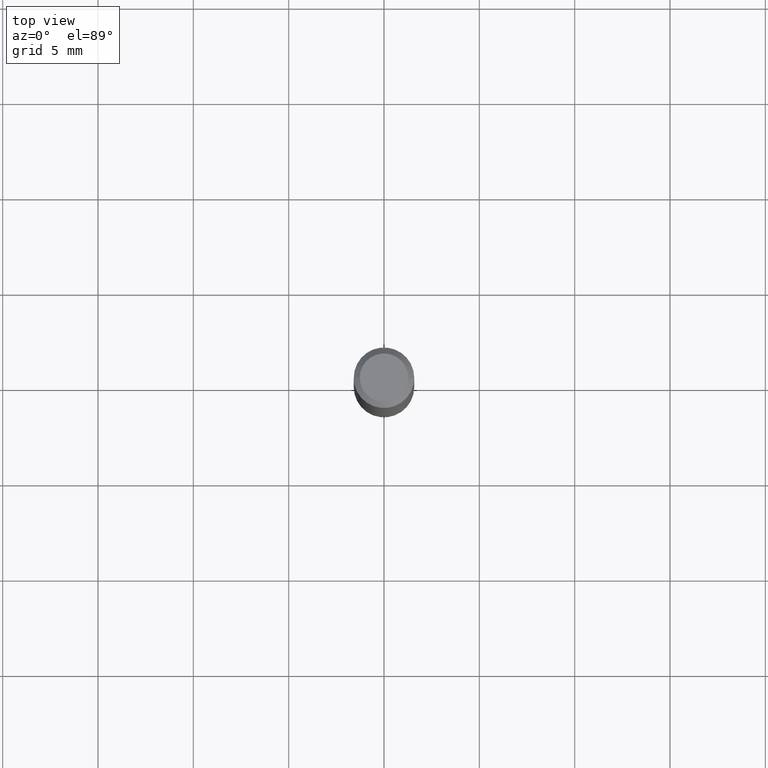
[diagram: clean part render]
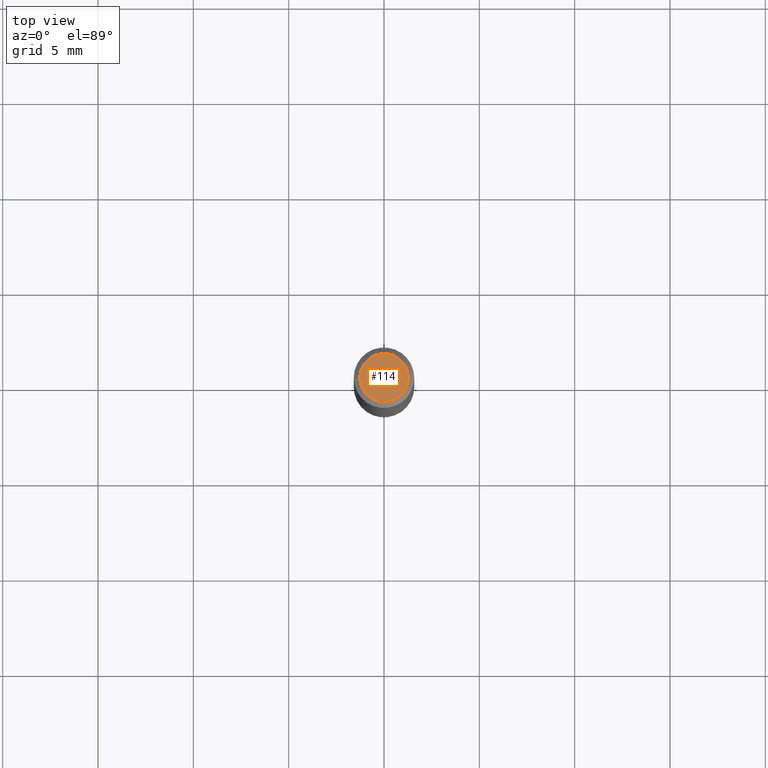
[diagram: same view with one face highlighted and labeled with its STEP entity id]
A machine part, top view. The second image highlights one B-rep face of the part: STEP entity #114.
In plain terms, the highlighted planar face has unit normal (0, -0, -1).
Its self-contained STEP definition (entity closure, byte-faithful):
#3 = VERTEX_POINT ( 'NONE', #405 ) ;
#67 = DIRECTION ( 'NONE',  ( 1.000000000000000000, -6.982962677686265922E-15, 4.875957971899673662E-29 ) ) ;
#84 = ORIENTED_EDGE ( 'NONE', *, *, #454, .T. ) ;
#87 = DIRECTION ( 'NONE',  ( -2.445468806185136597E-29, 3.491481338843145583E-15, 1.000000000000000000 ) ) ;
#93 = DIRECTION ( 'NONE',  ( -1.000000000000000000, 6.982962677686265922E-15, -4.876176775795935793E-29 ) ) ;
#114 = ADVANCED_FACE ( 'NONE', ( #219 ), #327, .F. ) ;
#147 = CARTESIAN_POINT ( 'NONE',  ( -0.04999999999999999584, 3.709698922520826725E-16, -1.592040838894077649E-18 ) ) ;
#186 = EDGE_LOOP ( 'NONE', ( #84, #380 ) ) ;
#196 = CARTESIAN_POINT ( 'NONE',  ( 3.893286209682126177E-47, -5.558580879666067980E-33, -1.592040838891559689E-18 ) ) ;
#203 = CARTESIAN_POINT ( 'NONE',  ( 3.893286209682126177E-47, -5.558580879666067980E-33, -1.592040838891559689E-18 ) ) ;
#217 = VERTEX_POINT ( 'NONE', #147 ) ;
#219 = FACE_OUTER_BOUND ( 'NONE', #186, .T. ) ;
#229 = CIRCLE ( 'NONE', #337, 0.04999999999999999584 ) ;
#236 = DIRECTION ( 'NONE',  ( 1.000000000000000000, -6.982962677686265922E-15, 4.875957971899673662E-29 ) ) ;
#267 = EDGE_CURVE ( 'NONE', #3, #217, #229, .T. ) ;
#288 = AXIS2_PLACEMENT_3D ( 'NONE', #480, #445, #93 ) ;
#327 = PLANE ( 'NONE',  #288 ) ;
#337 = AXIS2_PLACEMENT_3D ( 'NONE', #196, #408, #67 ) ;
#374 = AXIS2_PLACEMENT_3D ( 'NONE', #203, #87, #236 ) ;
#380 = ORIENTED_EDGE ( 'NONE', *, *, #267, .T. ) ;
#403 = CIRCLE ( 'NONE', #374, 0.04999999999999999584 ) ;
#405 = CARTESIAN_POINT ( 'NONE',  ( 0.04999999999999999584, -4.077247707424184705E-16, -1.592040838888913461E-18 ) ) ;
#408 = DIRECTION ( 'NONE',  ( -2.445468806185136597E-29, 3.491481338843145583E-15, 1.000000000000000000 ) ) ;
#445 = DIRECTION ( 'NONE',  ( 2.438088387897960049E-29, -3.491481338843145188E-15, -1.000000000000000000 ) ) ;
#454 = EDGE_CURVE ( 'NONE', #217, #3, #403, .T. ) ;
#480 = CARTESIAN_POINT ( 'NONE',  ( 1.946643104841063088E-47, -2.779290439833033990E-33, -7.960204194457798443E-19 ) ) ;